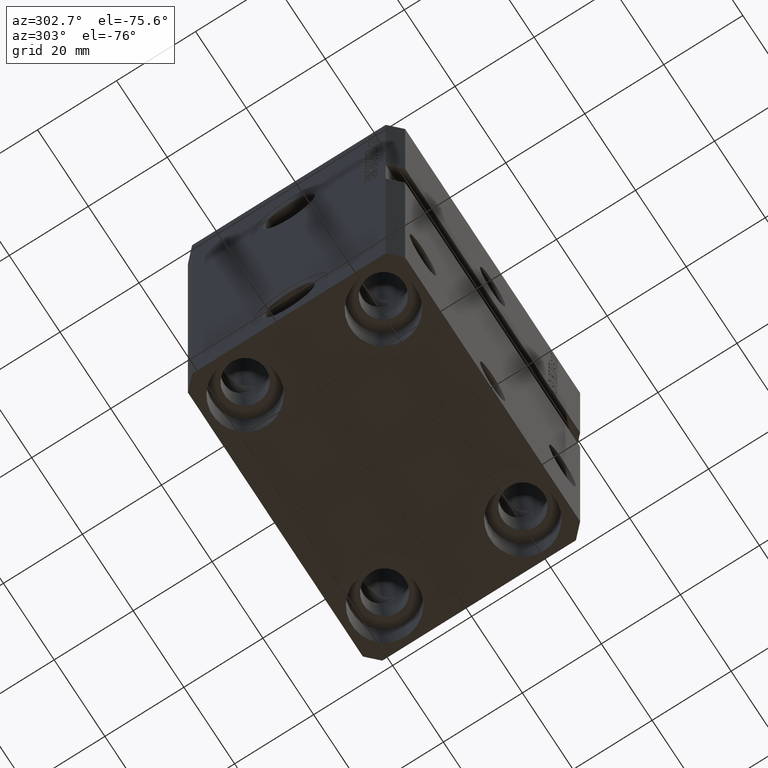
[diagram: clean part render]
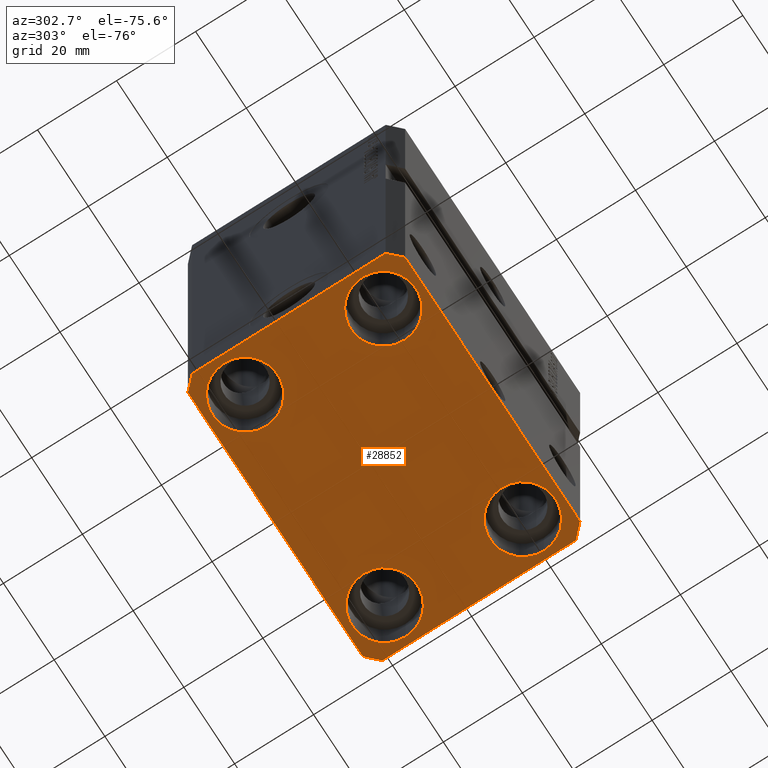
[diagram: same view with one face highlighted and labeled with its STEP entity id]
A machine part, auxiliary view. The second image highlights one B-rep face of the part: STEP entity #28852.
In plain terms, the highlighted planar face has unit normal (0, 0, 1).
Its self-contained STEP definition (entity closure, byte-faithful):
#579 = ORIENTED_EDGE ( 'NONE', *, *, #13779, .T. ) ;
#751 = CARTESIAN_POINT ( 'NONE',  ( -34.49999999999999289, 27.50000000000000000, -110.0000000000000000 ) ) ;
#1051 = CARTESIAN_POINT ( 'NONE',  ( 34.49999999999999289, -27.49999999999999645, -110.0000000000000000 ) ) ;
#1416 = CIRCLE ( 'NONE', #26932, 8.250000000000000000 ) ;
#1424 = FACE_BOUND ( 'NONE', #23045, .T. ) ;
#1659 = FACE_BOUND ( 'NONE', #30147, .T. ) ;
#2434 = VECTOR ( 'NONE', #28590, 1000.000000000000000 ) ;
#2667 = DIRECTION ( 'NONE',  ( -0.000000000000000000, -0.000000000000000000, 1.000000000000000000 ) ) ;
#2981 = EDGE_CURVE ( 'NONE', #27421, #43054, #26203, .T. ) ;
#3097 = CIRCLE ( 'NONE', #16918, 8.250000000000000000 ) ;
#3156 = ORIENTED_EDGE ( 'NONE', *, *, #34725, .F. ) ;
#3388 = VERTEX_POINT ( 'NONE', #40293 ) ;
#3806 = DIRECTION ( 'NONE',  ( 0.7071067811865474617, 0.7071067811865474617, 0.000000000000000000 ) ) ;
#4269 = DIRECTION ( 'NONE',  ( -1.000000000000000000, 0.000000000000000000, 0.000000000000000000 ) ) ;
#4489 = LINE ( 'NONE', #38964, #28783 ) ;
#5313 = AXIS2_PLACEMENT_3D ( 'NONE', #28492, #21196, #42424 ) ;
#5321 = PLANE ( 'NONE',  #8727 ) ;
#5411 = VECTOR ( 'NONE', #25799, 1000.000000000000000 ) ;
#5440 = CARTESIAN_POINT ( 'NONE',  ( -37.49999999999999289, 24.50000000000000000, -110.0000000000000000 ) ) ;
#5448 = DIRECTION ( 'NONE',  ( 1.000000000000000000, 0.000000000000000000, 0.000000000000000000 ) ) ;
#5513 = CARTESIAN_POINT ( 'NONE',  ( 27.50000000000000355, -17.50000000000000000, -110.0000000000000000 ) ) ;
#5593 = AXIS2_PLACEMENT_3D ( 'NONE', #35647, #17853, #15321 ) ;
#7234 = LINE ( 'NONE', #1051, #21849 ) ;
#7429 = CARTESIAN_POINT ( 'NONE',  ( 35.75000000000000711, -17.50000000000000000, -110.0000000000000000 ) ) ;
#8026 = EDGE_CURVE ( 'NONE', #36398, #28391, #40960, .T. ) ;
#8522 = CARTESIAN_POINT ( 'NONE',  ( 27.49999999999999645, 17.50000000000001066, -110.0000000000000000 ) ) ;
#8727 = AXIS2_PLACEMENT_3D ( 'NONE', #43880, #44553, #16921 ) ;
#9053 = VERTEX_POINT ( 'NONE', #14597 ) ;
#9346 = LINE ( 'NONE', #30314, #40931 ) ;
#10630 = CARTESIAN_POINT ( 'NONE',  ( -27.50000000000000355, 17.50000000000000000, -110.0000000000000000 ) ) ;
#10641 = CARTESIAN_POINT ( 'NONE',  ( 19.25000000000000000, -17.50000000000000000, -110.0000000000000000 ) ) ;
#10763 = ORIENTED_EDGE ( 'NONE', *, *, #29257, .T. ) ;
#10867 = EDGE_CURVE ( 'NONE', #28673, #29212, #41622, .T. ) ;
#10956 = CARTESIAN_POINT ( 'NONE',  ( 37.50000000000051870, 24.49999999999995381, -110.0000000000000000 ) ) ;
#11798 = AXIS2_PLACEMENT_3D ( 'NONE', #5513, #17293, #17509 ) ;
#11955 = VECTOR ( 'NONE', #22979, 1000.000000000000114 ) ;
#12020 = EDGE_CURVE ( 'NONE', #25431, #27421, #39944, .T. ) ;
#12313 = CARTESIAN_POINT ( 'NONE',  ( 34.49999999999999289, -27.49999999999999645, -110.0000000000000000 ) ) ;
#12688 = CARTESIAN_POINT ( 'NONE',  ( -37.49999999999999289, -24.50000000000000000, -110.0000000000000000 ) ) ;
#12891 = CARTESIAN_POINT ( 'NONE',  ( -34.49999999999999289, 27.50000000000000000, -110.0000000000000000 ) ) ;
#13779 = EDGE_CURVE ( 'NONE', #39997, #31985, #35311, .T. ) ;
#13810 = EDGE_LOOP ( 'NONE', ( #37547, #23933 ) ) ;
#13839 = CIRCLE ( 'NONE', #44478, 8.250000000000000000 ) ;
#14482 = ORIENTED_EDGE ( 'NONE', *, *, #29452, .F. ) ;
#14597 = CARTESIAN_POINT ( 'NONE',  ( -19.25000000000000355, -17.50000000000000000, -110.0000000000000000 ) ) ;
#14795 = VERTEX_POINT ( 'NONE', #28842 ) ;
#15321 = DIRECTION ( 'NONE',  ( 1.000000000000000000, 0.000000000000000000, 0.000000000000000000 ) ) ;
#15322 = DIRECTION ( 'NONE',  ( 1.000000000000000000, 0.000000000000000000, 0.000000000000000000 ) ) ;
#15347 = FACE_BOUND ( 'NONE', #13810, .T. ) ;
#15525 = CARTESIAN_POINT ( 'NONE',  ( -37.49999999999999289, -24.50000000000000000, -110.0000000000000000 ) ) ;
#15784 = CIRCLE ( 'NONE', #5593, 8.249999999999992895 ) ;
#16546 = ORIENTED_EDGE ( 'NONE', *, *, #8026, .T. ) ;
#16918 = AXIS2_PLACEMENT_3D ( 'NONE', #44215, #2667, #41225 ) ;
#16921 = DIRECTION ( 'NONE',  ( 1.000000000000000000, 0.000000000000000000, -0.000000000000000000 ) ) ;
#17293 = DIRECTION ( 'NONE',  ( -0.000000000000000000, -0.000000000000000000, 1.000000000000000000 ) ) ;
#17509 = DIRECTION ( 'NONE',  ( 1.000000000000000000, 0.000000000000000000, 0.000000000000000000 ) ) ;
#17853 = DIRECTION ( 'NONE',  ( -0.000000000000000000, -0.000000000000000000, 1.000000000000000000 ) ) ;
#18134 = VERTEX_POINT ( 'NONE', #10956 ) ;
#18161 = DIRECTION ( 'NONE',  ( -0.000000000000000000, -0.000000000000000000, 1.000000000000000000 ) ) ;
#18270 = CARTESIAN_POINT ( 'NONE',  ( 19.25000000000000000, 17.50000000000001066, -110.0000000000000000 ) ) ;
#18963 = EDGE_CURVE ( 'NONE', #31985, #39997, #15784, .T. ) ;
#19757 = VERTEX_POINT ( 'NONE', #7429 ) ;
#20348 = DIRECTION ( 'NONE',  ( 1.000000000000000000, 0.000000000000000000, 0.000000000000000000 ) ) ;
#20659 = DIRECTION ( 'NONE',  ( -0.000000000000000000, -0.000000000000000000, 1.000000000000000000 ) ) ;
#20952 = ORIENTED_EDGE ( 'NONE', *, *, #36462, .T. ) ;
#21126 = CARTESIAN_POINT ( 'NONE',  ( -34.49999999999998579, -27.49999999999999645, -110.0000000000000000 ) ) ;
#21196 = DIRECTION ( 'NONE',  ( -0.000000000000000000, -0.000000000000000000, 1.000000000000000000 ) ) ;
#21231 = CIRCLE ( 'NONE', #5313, 8.250000000000000000 ) ;
#21689 = DIRECTION ( 'NONE',  ( 1.076236605503979380E-14, 1.000000000000000000, 0.000000000000000000 ) ) ;
#21849 = VECTOR ( 'NONE', #3806, 1000.000000000000114 ) ;
#22017 = VECTOR ( 'NONE', #21689, 1000.000000000000000 ) ;
#22202 = ORIENTED_EDGE ( 'NONE', *, *, #18963, .T. ) ;
#22643 = FACE_OUTER_BOUND ( 'NONE', #25565, .T. ) ;
#22979 = DIRECTION ( 'NONE',  ( -0.7071067811865356934, 0.7071067811865594521, 0.000000000000000000 ) ) ;
#23045 = EDGE_LOOP ( 'NONE', ( #20952, #10763 ) ) ;
#23265 = CARTESIAN_POINT ( 'NONE',  ( 35.74999999999999289, 17.50000000000001066, -110.0000000000000000 ) ) ;
#23709 = DIRECTION ( 'NONE',  ( 0.000000000000000000, -1.000000000000000000, 0.000000000000000000 ) ) ;
#23933 = ORIENTED_EDGE ( 'NONE', *, *, #37545, .T. ) ;
#24120 = DIRECTION ( 'NONE',  ( 1.000000000000000000, 0.000000000000000000, 0.000000000000000000 ) ) ;
#24214 = VECTOR ( 'NONE', #5448, 1000.000000000000000 ) ;
#24793 = DIRECTION ( 'NONE',  ( 1.000000000000000000, 0.000000000000000000, 0.000000000000000000 ) ) ;
#25047 = ORIENTED_EDGE ( 'NONE', *, *, #45053, .F. ) ;
#25431 = VERTEX_POINT ( 'NONE', #12688 ) ;
#25565 = EDGE_LOOP ( 'NONE', ( #25047, #27516, #37095, #14482, #29036, #26371, #3156, #39624 ) ) ;
#25799 = DIRECTION ( 'NONE',  ( 0.7071067811865483499, -0.7071067811865466846, 0.000000000000000000 ) ) ;
#26203 = LINE ( 'NONE', #36706, #24214 ) ;
#26371 = ORIENTED_EDGE ( 'NONE', *, *, #12020, .F. ) ;
#26525 = CARTESIAN_POINT ( 'NONE',  ( -27.50000000000000355, 17.50000000000000000, -110.0000000000000000 ) ) ;
#26932 = AXIS2_PLACEMENT_3D ( 'NONE', #26525, #40446, #20348 ) ;
#27421 = VERTEX_POINT ( 'NONE', #21126 ) ;
#27516 = ORIENTED_EDGE ( 'NONE', *, *, #43350, .F. ) ;
#27762 = DIRECTION ( 'NONE',  ( -0.000000000000000000, -0.000000000000000000, 1.000000000000000000 ) ) ;
#28096 = EDGE_LOOP ( 'NONE', ( #37523, #16546 ) ) ;
#28391 = VERTEX_POINT ( 'NONE', #31631 ) ;
#28492 = CARTESIAN_POINT ( 'NONE',  ( -27.50000000000000355, -17.50000000000000000, -110.0000000000000000 ) ) ;
#28590 = DIRECTION ( 'NONE',  ( -0.7071067811865471286, -0.7071067811865479058, 0.000000000000000000 ) ) ;
#28673 = VERTEX_POINT ( 'NONE', #12891 ) ;
#28783 = VECTOR ( 'NONE', #4269, 1000.000000000000000 ) ;
#28842 = CARTESIAN_POINT ( 'NONE',  ( 34.50000000000056843, 27.50000000000000000, -110.0000000000000000 ) ) ;
#28852 = ADVANCED_FACE ( 'NONE', ( #1424, #15347, #1659, #29496, #22643 ), #5321, .F. ) ;
#28899 = EDGE_CURVE ( 'NONE', #28391, #36398, #1416, .T. ) ;
#28906 = CARTESIAN_POINT ( 'NONE',  ( 37.49999999999999289, -24.50000000000000000, -110.0000000000000000 ) ) ;
#29036 = ORIENTED_EDGE ( 'NONE', *, *, #2981, .F. ) ;
#29212 = VERTEX_POINT ( 'NONE', #5440 ) ;
#29257 = EDGE_CURVE ( 'NONE', #9053, #3388, #13839, .T. ) ;
#29452 = EDGE_CURVE ( 'NONE', #43054, #41138, #7234, .T. ) ;
#29496 = FACE_BOUND ( 'NONE', #28096, .T. ) ;
#29809 = CARTESIAN_POINT ( 'NONE',  ( 37.50000000000051870, 24.49999999999995381, -110.0000000000000000 ) ) ;
#30147 = EDGE_LOOP ( 'NONE', ( #579, #22202 ) ) ;
#30197 = AXIS2_PLACEMENT_3D ( 'NONE', #8522, #18161, #24793 ) ;
#30314 = CARTESIAN_POINT ( 'NONE',  ( -37.49999999999999289, 24.50000000000000000, -110.0000000000000000 ) ) ;
#31631 = CARTESIAN_POINT ( 'NONE',  ( -35.75000000000000711, 17.50000000000000000, -110.0000000000000000 ) ) ;
#31985 = VERTEX_POINT ( 'NONE', #23265 ) ;
#33336 = VERTEX_POINT ( 'NONE', #10641 ) ;
#33927 = CARTESIAN_POINT ( 'NONE',  ( -27.50000000000000355, -17.50000000000000000, -110.0000000000000000 ) ) ;
#34566 = EDGE_CURVE ( 'NONE', #41138, #18134, #39480, .T. ) ;
#34725 = EDGE_CURVE ( 'NONE', #29212, #25431, #9346, .T. ) ;
#35311 = CIRCLE ( 'NONE', #30197, 8.249999999999992895 ) ;
#35647 = CARTESIAN_POINT ( 'NONE',  ( 27.49999999999999645, 17.50000000000001066, -110.0000000000000000 ) ) ;
#36398 = VERTEX_POINT ( 'NONE', #38555 ) ;
#36462 = EDGE_CURVE ( 'NONE', #3388, #9053, #21231, .T. ) ;
#36706 = CARTESIAN_POINT ( 'NONE',  ( -34.49999999999998579, -27.49999999999999645, -110.0000000000000000 ) ) ;
#37095 = ORIENTED_EDGE ( 'NONE', *, *, #34566, .F. ) ;
#37523 = ORIENTED_EDGE ( 'NONE', *, *, #28899, .T. ) ;
#37545 = EDGE_CURVE ( 'NONE', #19757, #33336, #43859, .T. ) ;
#37547 = ORIENTED_EDGE ( 'NONE', *, *, #38197, .T. ) ;
#38041 = AXIS2_PLACEMENT_3D ( 'NONE', #10630, #20659, #15322 ) ;
#38197 = EDGE_CURVE ( 'NONE', #33336, #19757, #3097, .T. ) ;
#38555 = CARTESIAN_POINT ( 'NONE',  ( -19.25000000000000355, 17.50000000000000000, -110.0000000000000000 ) ) ;
#38964 = CARTESIAN_POINT ( 'NONE',  ( 34.50000000000056843, 27.50000000000000000, -110.0000000000000000 ) ) ;
#39480 = LINE ( 'NONE', #39704, #22017 ) ;
#39624 = ORIENTED_EDGE ( 'NONE', *, *, #10867, .F. ) ;
#39648 = LINE ( 'NONE', #29809, #11955 ) ;
#39704 = CARTESIAN_POINT ( 'NONE',  ( 37.49999999999999289, -24.50000000000000000, -110.0000000000000000 ) ) ;
#39944 = LINE ( 'NONE', #15525, #5411 ) ;
#39997 = VERTEX_POINT ( 'NONE', #18270 ) ;
#40293 = CARTESIAN_POINT ( 'NONE',  ( -35.75000000000000711, -17.50000000000000000, -110.0000000000000000 ) ) ;
#40446 = DIRECTION ( 'NONE',  ( -0.000000000000000000, -0.000000000000000000, 1.000000000000000000 ) ) ;
#40931 = VECTOR ( 'NONE', #23709, 1000.000000000000000 ) ;
#40960 = CIRCLE ( 'NONE', #38041, 8.250000000000000000 ) ;
#41138 = VERTEX_POINT ( 'NONE', #28906 ) ;
#41225 = DIRECTION ( 'NONE',  ( 1.000000000000000000, 0.000000000000000000, 0.000000000000000000 ) ) ;
#41622 = LINE ( 'NONE', #751, #2434 ) ;
#42424 = DIRECTION ( 'NONE',  ( 1.000000000000000000, 0.000000000000000000, 0.000000000000000000 ) ) ;
#43054 = VERTEX_POINT ( 'NONE', #12313 ) ;
#43350 = EDGE_CURVE ( 'NONE', #18134, #14795, #39648, .T. ) ;
#43859 = CIRCLE ( 'NONE', #11798, 8.250000000000000000 ) ;
#43880 = CARTESIAN_POINT ( 'NONE',  ( 0.000000000000000000, 0.000000000000000000, -110.0000000000000000 ) ) ;
#44215 = CARTESIAN_POINT ( 'NONE',  ( 27.50000000000000355, -17.50000000000000000, -110.0000000000000000 ) ) ;
#44478 = AXIS2_PLACEMENT_3D ( 'NONE', #33927, #27762, #24120 ) ;
#44553 = DIRECTION ( 'NONE',  ( 0.000000000000000000, 0.000000000000000000, 1.000000000000000000 ) ) ;
#45053 = EDGE_CURVE ( 'NONE', #14795, #28673, #4489, .T. ) ;